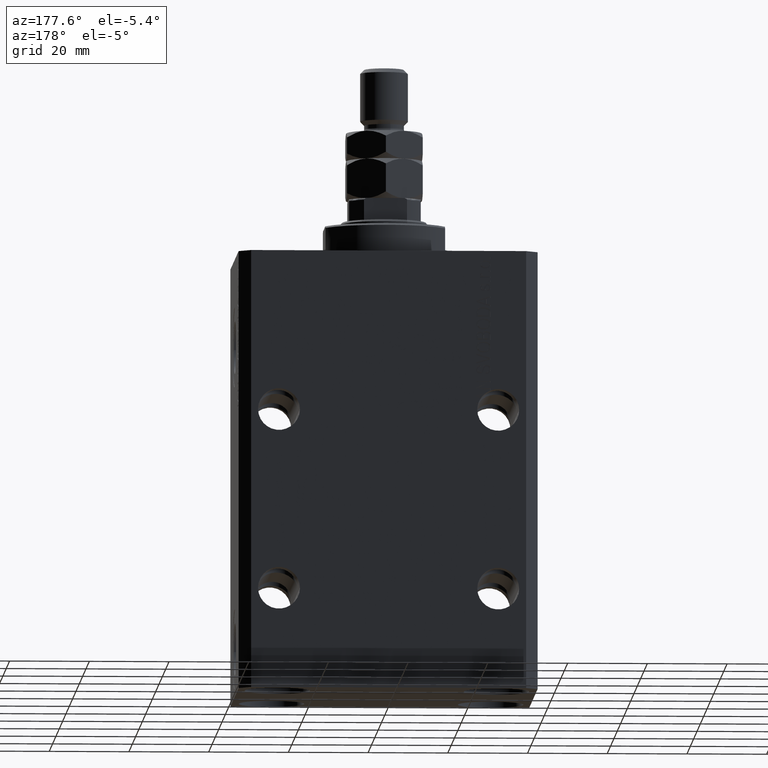
[diagram: clean part render]
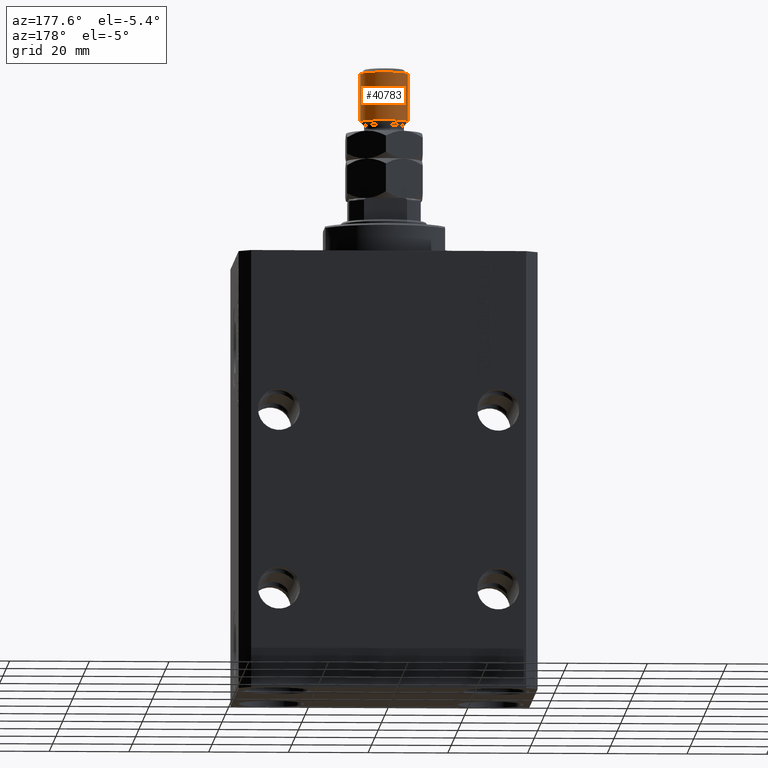
[diagram: same view with one face highlighted and labeled with its STEP entity id]
A machine part, auxiliary view. The second image highlights one B-rep face of the part: STEP entity #40783.
In plain terms, the highlighted cylindrical surface (edge-blend (fillet) strip) has radius 6 mm, axis along (-0, -0, -1).
Its self-contained STEP definition (entity closure, byte-faithful):
#869 = CARTESIAN_POINT ( 'NONE',  ( 0.000000000000000000, 0.000000000000000000, 20.00000000000000711 ) ) ;
#896 = VERTEX_POINT ( 'NONE', #27827 ) ;
#1548 = VERTEX_POINT ( 'NONE', #32132 ) ;
#2991 = LINE ( 'NONE', #42479, #3004 ) ;
#3004 = VECTOR ( 'NONE', #17470, 1000.000000000000000 ) ;
#3766 = VECTOR ( 'NONE', #29659, 1000.000000000000000 ) ;
#4083 = ORIENTED_EDGE ( 'NONE', *, *, #40057, .T. ) ;
#5689 = ORIENTED_EDGE ( 'NONE', *, *, #37109, .T. ) ;
#9456 = VERTEX_POINT ( 'NONE', #22663 ) ;
#10085 = EDGE_CURVE ( 'NONE', #9456, #1548, #2991, .T. ) ;
#11286 = CYLINDRICAL_SURFACE ( 'NONE', #39588, 6.000000000000000888 ) ;
#14636 = EDGE_LOOP ( 'NONE', ( #5689, #4083, #30459, #29458 ) ) ;
#14732 = CARTESIAN_POINT ( 'NONE',  ( 6.000000000000000888, 7.347880794884120722E-16, 33.00000000000000000 ) ) ;
#15726 = CIRCLE ( 'NONE', #35139, 6.000000000000000888 ) ;
#17470 = DIRECTION ( 'NONE',  ( -0.000000000000000000, -0.000000000000000000, -1.000000000000000000 ) ) ;
#19417 = DIRECTION ( 'NONE',  ( -0.000000000000000000, -0.000000000000000000, -1.000000000000000000 ) ) ;
#19475 = CARTESIAN_POINT ( 'NONE',  ( 0.000000000000000000, 0.000000000000000000, 32.00000000000000000 ) ) ;
#21968 = LINE ( 'NONE', #14732, #3766 ) ;
#22250 = DIRECTION ( 'NONE',  ( -1.000000000000000000, 0.000000000000000000, 0.000000000000000000 ) ) ;
#22663 = CARTESIAN_POINT ( 'NONE',  ( -6.000000000000000888, 0.000000000000000000, 32.00000000000000000 ) ) ;
#22982 = CARTESIAN_POINT ( 'NONE',  ( 6.000000000000000888, 7.347880794884120722E-16, 20.00000000000000711 ) ) ;
#23025 = DIRECTION ( 'NONE',  ( 1.000000000000000000, 0.000000000000000000, 0.000000000000000000 ) ) ;
#23451 = VERTEX_POINT ( 'NONE', #22982 ) ;
#26723 = DIRECTION ( 'NONE',  ( 1.000000000000000000, 0.000000000000000000, 0.000000000000000000 ) ) ;
#27827 = CARTESIAN_POINT ( 'NONE',  ( 6.000000000000000888, 7.347880794884120722E-16, 32.00000000000000000 ) ) ;
#29458 = ORIENTED_EDGE ( 'NONE', *, *, #10085, .F. ) ;
#29659 = DIRECTION ( 'NONE',  ( -0.000000000000000000, -0.000000000000000000, -1.000000000000000000 ) ) ;
#30459 = ORIENTED_EDGE ( 'NONE', *, *, #32911, .T. ) ;
#32132 = CARTESIAN_POINT ( 'NONE',  ( -6.000000000000000888, 0.000000000000000000, 20.00000000000000711 ) ) ;
#32911 = EDGE_CURVE ( 'NONE', #23451, #1548, #46136, .T. ) ;
#33230 = FACE_OUTER_BOUND ( 'NONE', #14636, .T. ) ;
#35139 = AXIS2_PLACEMENT_3D ( 'NONE', #19475, #44736, #26723 ) ;
#37109 = EDGE_CURVE ( 'NONE', #9456, #896, #15726, .T. ) ;
#39382 = AXIS2_PLACEMENT_3D ( 'NONE', #869, #45016, #23025 ) ;
#39588 = AXIS2_PLACEMENT_3D ( 'NONE', #40249, #19417, #22250 ) ;
#40057 = EDGE_CURVE ( 'NONE', #896, #23451, #21968, .T. ) ;
#40249 = CARTESIAN_POINT ( 'NONE',  ( 0.000000000000000000, 0.000000000000000000, 33.00000000000000000 ) ) ;
#40783 = ADVANCED_FACE ( 'NONE', ( #33230 ), #11286, .T. ) ;
#42479 = CARTESIAN_POINT ( 'NONE',  ( -6.000000000000000888, 0.000000000000000000, 33.00000000000000000 ) ) ;
#44736 = DIRECTION ( 'NONE',  ( 0.000000000000000000, 0.000000000000000000, -1.000000000000000000 ) ) ;
#45016 = DIRECTION ( 'NONE',  ( -0.000000000000000000, -0.000000000000000000, 1.000000000000000000 ) ) ;
#46136 = CIRCLE ( 'NONE', #39382, 6.000000000000000888 ) ;